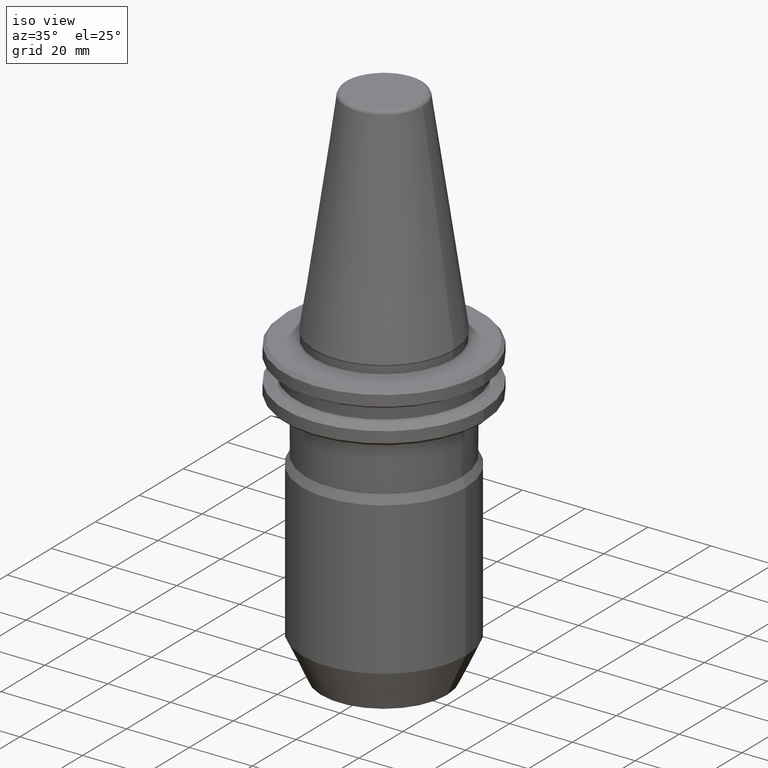
[diagram: clean part render]
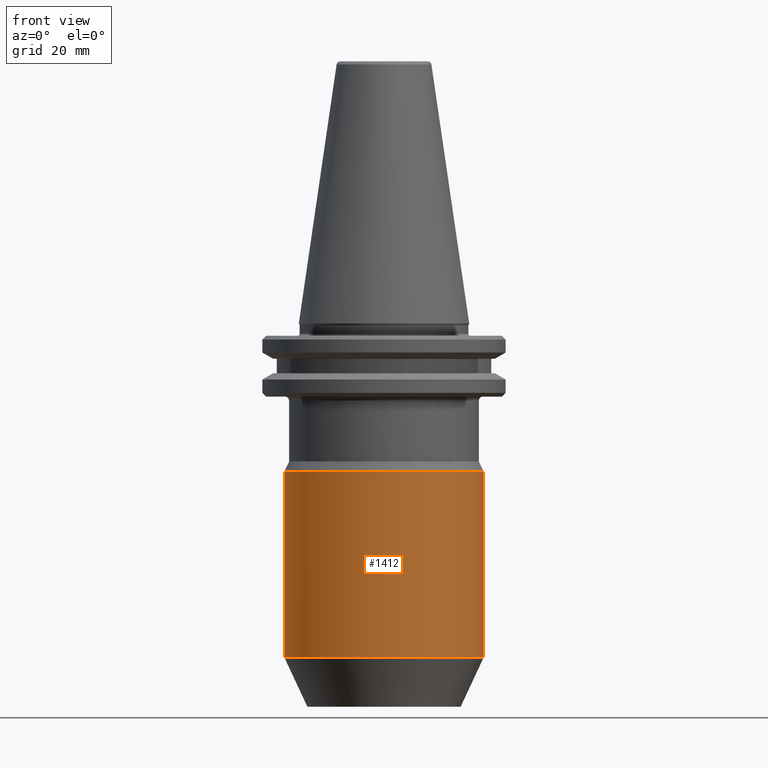
[diagram: tour spotlight — one face highlighted and labeled with its STEP entity id]
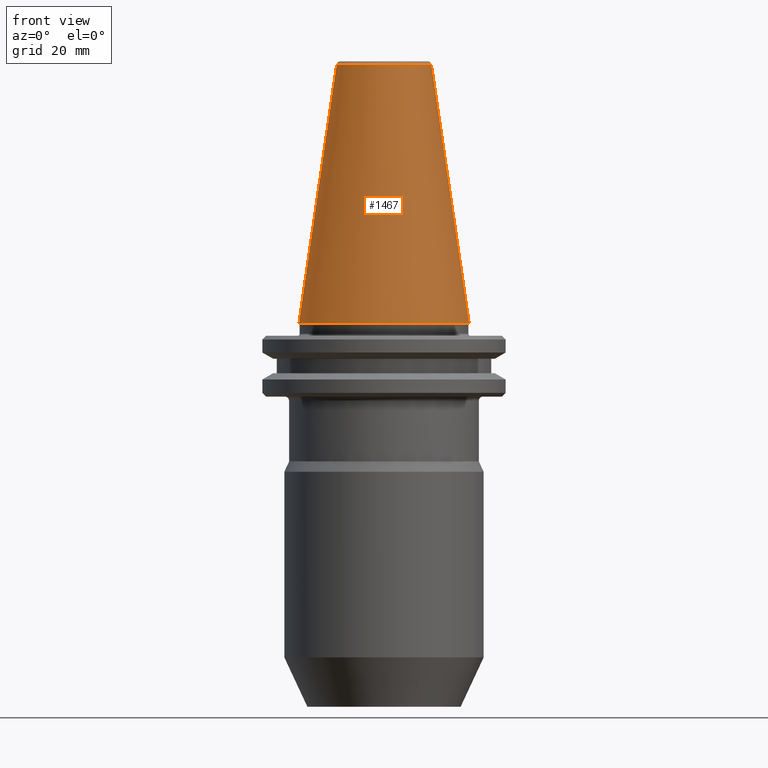
[diagram: tour spotlight — one face highlighted and labeled with its STEP entity id]
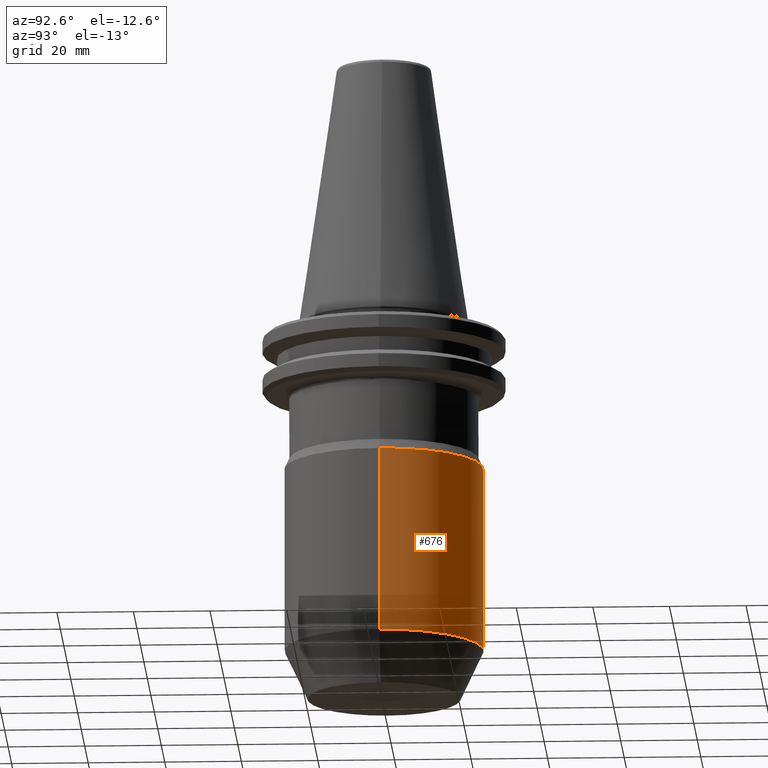
[diagram: tour spotlight — one face highlighted and labeled with its STEP entity id]
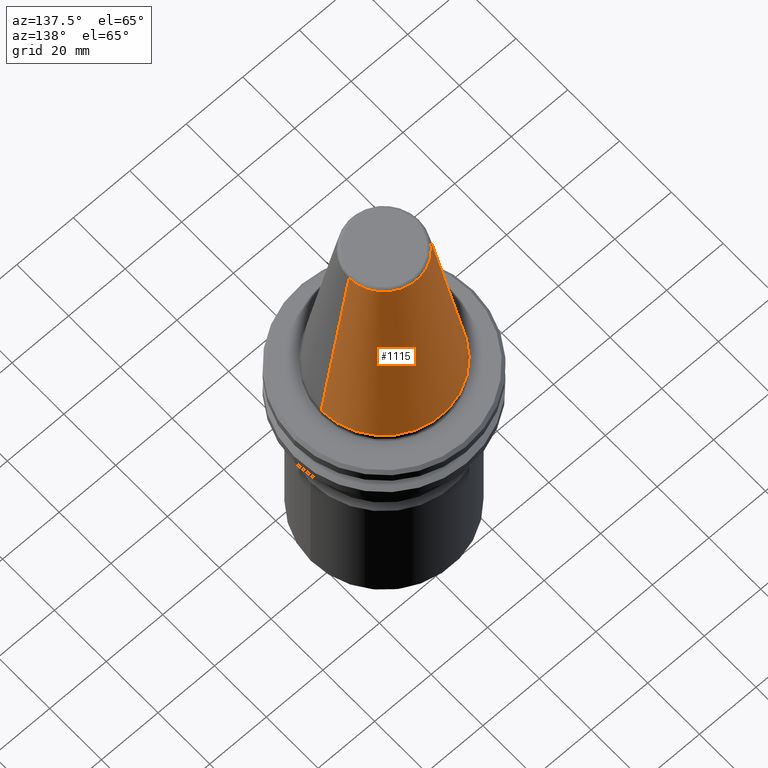
[diagram: tour spotlight — one face highlighted and labeled with its STEP entity id]
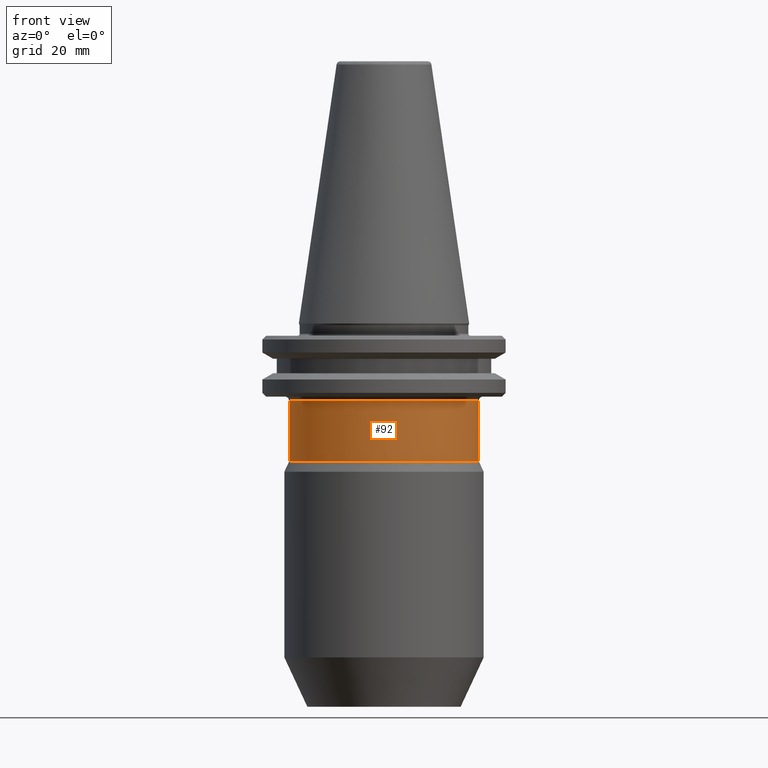
[diagram: tour spotlight — one face highlighted and labeled with its STEP entity id]
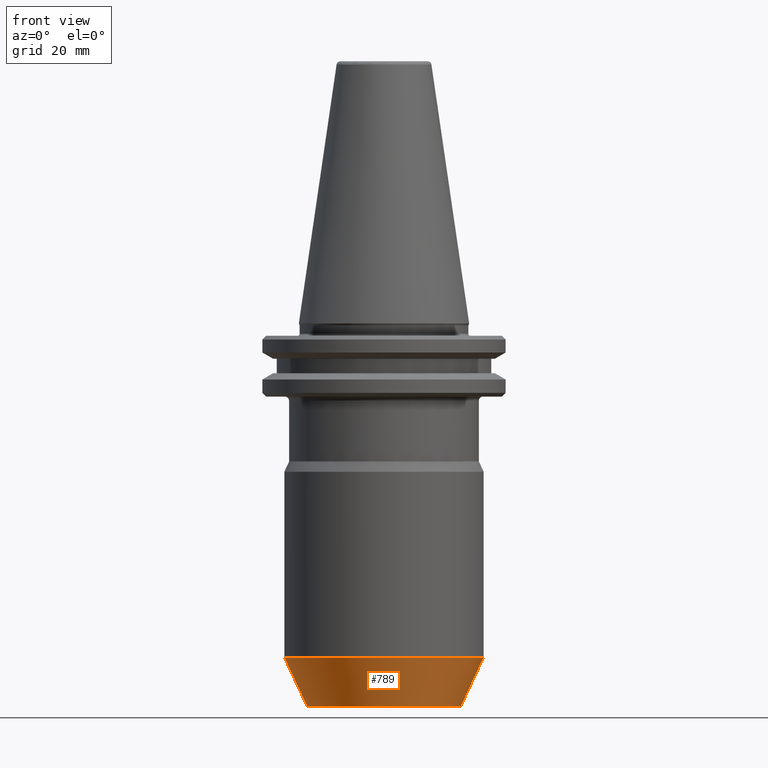
[diagram: tour spotlight — one face highlighted and labeled with its STEP entity id]
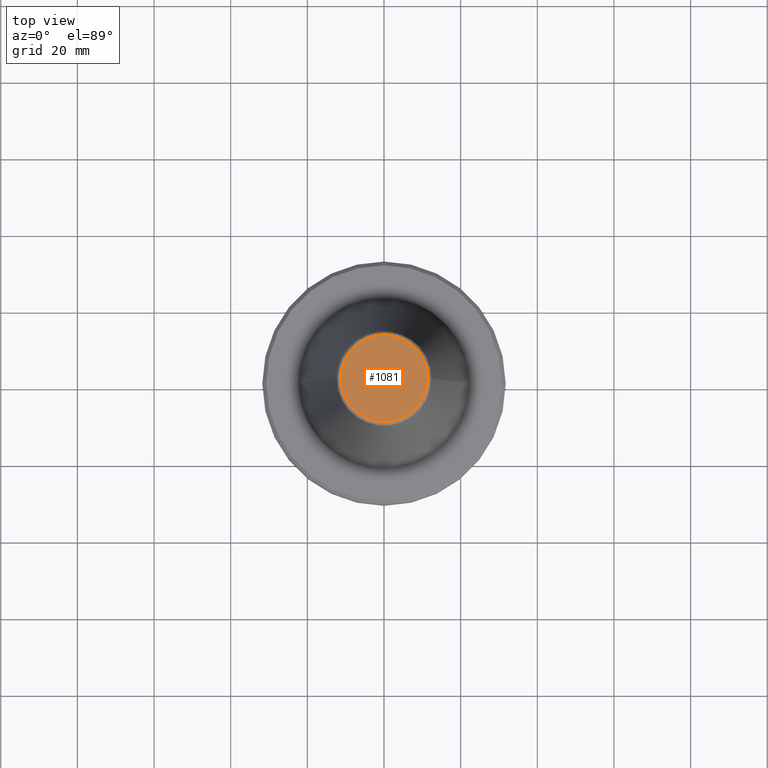
[diagram: tour spotlight — one face highlighted and labeled with its STEP entity id]
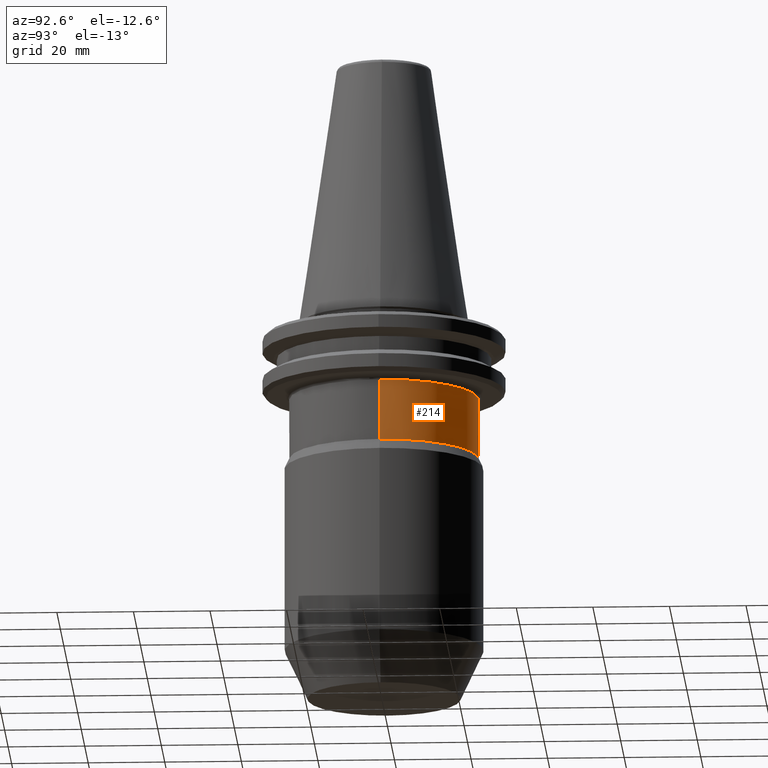
[diagram: tour spotlight — one face highlighted and labeled with its STEP entity id]
A machine part: a face-by-face anatomy tour. The part has 40 B-rep faces; the first image is the clean iso view, then the 8 largest visible faces are spotlighted one at a time (largest first), each with its STEP entity span.

Face 1 — front view, entity #1412. In plain terms, the highlighted cylindrical surface (partial cylindrical patch) has radius 26 mm, axis along (0, 0, 1).
Definition (entity closure, byte-faithful):
#10 = CYLINDRICAL_SURFACE ( 'NONE', #448, 26.00000000000000700 ) ;
#121 = VECTOR ( 'NONE', #576, 1000.000000000000000 ) ;
#134 = DIRECTION ( 'NONE',  ( 1.000000000000000000, 0.0000000000000000000, 0.0000000000000000000 ) ) ;
#135 = FACE_OUTER_BOUND ( 'NONE', #465, .T. ) ;
#157 = LINE ( 'NONE', #394, #121 ) ;
#173 = CARTESIAN_POINT ( 'NONE',  ( -26.00000000000000700, 3.184081677783119000E-015, -38.67999999999999300 ) ) ;
#183 = VERTEX_POINT ( 'NONE', #173 ) ;
#190 = ORIENTED_EDGE ( 'NONE', *, *, #1065, .F. ) ;
#265 = CARTESIAN_POINT ( 'NONE',  ( 0.0000000000000000000, 0.0000000000000000000, -87.13295847694240600 ) ) ;
#313 = CIRCLE ( 'NONE', #1620, 26.00000000000000700 ) ;
#354 = CARTESIAN_POINT ( 'NONE',  ( 26.00000000000000700, 0.0000000000000000000, -38.67999999999999300 ) ) ;
#394 = CARTESIAN_POINT ( 'NONE',  ( -26.00000000000000700, 3.184081677783119000E-015, 82.95681253582424100 ) ) ;
#427 = EDGE_CURVE ( 'NONE', #1399, #937, #313, .T. ) ;
#448 = AXIS2_PLACEMENT_3D ( 'NONE', #1138, #495, #1258 ) ;
#465 = EDGE_LOOP ( 'NONE', ( #190, #1082, #1165, #1482 ) ) ;
#489 = VECTOR ( 'NONE', #1542, 1000.000000000000000 ) ;
#495 = DIRECTION ( 'NONE',  ( 0.0000000000000000000, 0.0000000000000000000, 1.000000000000000000 ) ) ;
#562 = CARTESIAN_POINT ( 'NONE',  ( 0.0000000000000000000, 0.0000000000000000000, -38.67999999999999300 ) ) ;
#576 = DIRECTION ( 'NONE',  ( 0.0000000000000000000, 0.0000000000000000000, 1.000000000000000000 ) ) ;
#617 = CARTESIAN_POINT ( 'NONE',  ( 26.00000000000000700, 0.0000000000000000000, -87.13295847694240600 ) ) ;
#820 = DIRECTION ( 'NONE',  ( 1.000000000000000000, 0.0000000000000000000, 0.0000000000000000000 ) ) ;
#937 = VERTEX_POINT ( 'NONE', #617 ) ;
#941 = VERTEX_POINT ( 'NONE', #354 ) ;
#1042 = EDGE_CURVE ( 'NONE', #937, #941, #1512, .T. ) ;
#1044 = CARTESIAN_POINT ( 'NONE',  ( 26.00000000000000700, 0.0000000000000000000, 82.95681253582424100 ) ) ;
#1065 = EDGE_CURVE ( 'NONE', #1399, #183, #157, .T. ) ;
#1082 = ORIENTED_EDGE ( 'NONE', *, *, #427, .T. ) ;
#1095 = EDGE_CURVE ( 'NONE', #941, #183, #1427, .T. ) ;
#1138 = CARTESIAN_POINT ( 'NONE',  ( 0.0000000000000000000, 0.0000000000000000000, 82.95681253582424100 ) ) ;
#1152 = DIRECTION ( 'NONE',  ( 0.0000000000000000000, 0.0000000000000000000, 1.000000000000000000 ) ) ;
#1165 = ORIENTED_EDGE ( 'NONE', *, *, #1042, .T. ) ;
#1258 = DIRECTION ( 'NONE',  ( 1.000000000000000000, 0.0000000000000000000, 0.0000000000000000000 ) ) ;
#1303 = AXIS2_PLACEMENT_3D ( 'NONE', #562, #1447, #820 ) ;
#1383 = CARTESIAN_POINT ( 'NONE',  ( -26.00000000000000700, 3.184081677783119000E-015, -87.13295847694240600 ) ) ;
#1399 = VERTEX_POINT ( 'NONE', #1383 ) ;
#1412 = ADVANCED_FACE ( 'NONE', ( #135 ), #10, .T. ) ;
#1427 = CIRCLE ( 'NONE', #1303, 26.00000000000000700 ) ;
#1447 = DIRECTION ( 'NONE',  ( -0.0000000000000000000, -0.0000000000000000000, -1.000000000000000000 ) ) ;
#1482 = ORIENTED_EDGE ( 'NONE', *, *, #1095, .T. ) ;
#1512 = LINE ( 'NONE', #1044, #489 ) ;
#1542 = DIRECTION ( 'NONE',  ( 0.0000000000000000000, 0.0000000000000000000, 1.000000000000000000 ) ) ;
#1620 = AXIS2_PLACEMENT_3D ( 'NONE', #265, #1152, #134 ) ;

Face 2 — front view, entity #1467. In plain terms, the highlighted conical surface has half-angle 8.297 deg.
Definition (entity closure, byte-faithful):
#28 = VERTEX_POINT ( 'NONE', #245 ) ;
#94 = CARTESIAN_POINT ( 'NONE',  ( -22.22500000000000100, 0.0000000000000000000, 0.0000000000000000000 ) ) ;
#143 = DIRECTION ( 'NONE',  ( -0.0000000000000000000, -0.0000000000000000000, -1.000000000000000000 ) ) ;
#182 = EDGE_CURVE ( 'NONE', #608, #28, #1430, .T. ) ;
#188 = AXIS2_PLACEMENT_3D ( 'NONE', #1433, #1558, #543 ) ;
#245 = CARTESIAN_POINT ( 'NONE',  ( -12.37469537611110800, 0.0000000000000000000, 67.54430822726729400 ) ) ;
#276 = VECTOR ( 'NONE', #844, 1000.000000000000000 ) ;
#339 = CARTESIAN_POINT ( 'NONE',  ( -22.22500000000000100, 0.0000000000000000000, 0.0000000000000000000 ) ) ;
#480 = CARTESIAN_POINT ( 'NONE',  ( 22.22500000000000100, 2.721777511104992800E-015, 0.0000000000000000000 ) ) ;
#509 = DIRECTION ( 'NONE',  ( 0.0000000000000000000, 0.0000000000000000000, -1.000000000000000000 ) ) ;
#543 = DIRECTION ( 'NONE',  ( -1.000000000000000000, 0.0000000000000000000, 0.0000000000000000000 ) ) ;
#571 = CARTESIAN_POINT ( 'NONE',  ( 12.37469537611110800, 2.118620309691397300E-015, 67.54430822726729400 ) ) ;
#608 = VERTEX_POINT ( 'NONE', #571 ) ;
#612 = LINE ( 'NONE', #339, #276 ) ;
#625 = EDGE_LOOP ( 'NONE', ( #727, #1278, #779, #1624 ) ) ;
#642 = DIRECTION ( 'NONE',  ( -1.000000000000000000, 0.0000000000000000000, 0.0000000000000000000 ) ) ;
#658 = EDGE_CURVE ( 'NONE', #756, #862, #1070, .T. ) ;
#663 = DIRECTION ( 'NONE',  ( 0.1443082272673070500, 1.767266086135363700E-017, -0.9895327864921743500 ) ) ;
#687 = FACE_OUTER_BOUND ( 'NONE', #625, .T. ) ;
#727 = ORIENTED_EDGE ( 'NONE', *, *, #774, .F. ) ;
#733 = LINE ( 'NONE', #480, #1022 ) ;
#756 = VERTEX_POINT ( 'NONE', #863 ) ;
#774 = EDGE_CURVE ( 'NONE', #608, #756, #733, .T. ) ;
#779 = ORIENTED_EDGE ( 'NONE', *, *, #913, .T. ) ;
#844 = DIRECTION ( 'NONE',  ( -0.1443082272673070500, 0.0000000000000000000, -0.9895327864921743500 ) ) ;
#862 = VERTEX_POINT ( 'NONE', #94 ) ;
#863 = CARTESIAN_POINT ( 'NONE',  ( 22.22500000000000100, 2.721777511104992800E-015, 0.0000000000000000000 ) ) ;
#902 = CARTESIAN_POINT ( 'NONE',  ( 0.0000000000000000000, 0.0000000000000000000, 0.0000000000000000000 ) ) ;
#913 = EDGE_CURVE ( 'NONE', #28, #862, #612, .T. ) ;
#932 = CARTESIAN_POINT ( 'NONE',  ( 0.0000000000000000000, 0.0000000000000000000, 67.54430822726729400 ) ) ;
#1022 = VECTOR ( 'NONE', #663, 1000.000000000000000 ) ;
#1023 = AXIS2_PLACEMENT_3D ( 'NONE', #932, #509, #642 ) ;
#1029 = DIRECTION ( 'NONE',  ( 1.000000000000000000, 0.0000000000000000000, 9.822541477422708000E-017 ) ) ;
#1070 = CIRCLE ( 'NONE', #1271, 22.22500000000000500 ) ;
#1271 = AXIS2_PLACEMENT_3D ( 'NONE', #902, #143, #1029 ) ;
#1278 = ORIENTED_EDGE ( 'NONE', *, *, #182, .T. ) ;
#1283 = CONICAL_SURFACE ( 'NONE', #188, 22.22500000000000100, 0.1448138465474190500 ) ;
#1430 = CIRCLE ( 'NONE', #1023, 12.37469537611110800 ) ;
#1433 = CARTESIAN_POINT ( 'NONE',  ( 0.0000000000000000000, 0.0000000000000000000, 0.0000000000000000000 ) ) ;
#1467 = ADVANCED_FACE ( 'NONE', ( #687 ), #1283, .T. ) ;
#1558 = DIRECTION ( 'NONE',  ( 0.0000000000000000000, 0.0000000000000000000, -1.000000000000000000 ) ) ;
#1624 = ORIENTED_EDGE ( 'NONE', *, *, #658, .F. ) ;

Face 3 — auxiliary view, entity #676. In plain terms, the highlighted cylindrical surface (partial cylindrical patch) has radius 26 mm, axis along (0, 0, 1).
Definition (entity closure, byte-faithful):
#14 = DIRECTION ( 'NONE',  ( 1.000000000000000000, 0.0000000000000000000, 0.0000000000000000000 ) ) ;
#56 = CIRCLE ( 'NONE', #1112, 26.00000000000000700 ) ;
#67 = DIRECTION ( 'NONE',  ( 1.000000000000000000, 0.0000000000000000000, 0.0000000000000000000 ) ) ;
#68 = ORIENTED_EDGE ( 'NONE', *, *, #999, .T. ) ;
#121 = VECTOR ( 'NONE', #576, 1000.000000000000000 ) ;
#137 = FACE_OUTER_BOUND ( 'NONE', #1536, .T. ) ;
#157 = LINE ( 'NONE', #394, #121 ) ;
#173 = CARTESIAN_POINT ( 'NONE',  ( -26.00000000000000700, 3.184081677783119000E-015, -38.67999999999999300 ) ) ;
#183 = VERTEX_POINT ( 'NONE', #173 ) ;
#193 = DIRECTION ( 'NONE',  ( 0.0000000000000000000, 0.0000000000000000000, 1.000000000000000000 ) ) ;
#274 = DIRECTION ( 'NONE',  ( 0.0000000000000000000, 0.0000000000000000000, 1.000000000000000000 ) ) ;
#289 = ORIENTED_EDGE ( 'NONE', *, *, #1065, .T. ) ;
#354 = CARTESIAN_POINT ( 'NONE',  ( 26.00000000000000700, 0.0000000000000000000, -38.67999999999999300 ) ) ;
#394 = CARTESIAN_POINT ( 'NONE',  ( -26.00000000000000700, 3.184081677783119000E-015, 82.95681253582424100 ) ) ;
#437 = CARTESIAN_POINT ( 'NONE',  ( 0.0000000000000000000, 0.0000000000000000000, -87.13295847694240600 ) ) ;
#489 = VECTOR ( 'NONE', #1542, 1000.000000000000000 ) ;
#576 = DIRECTION ( 'NONE',  ( 0.0000000000000000000, 0.0000000000000000000, 1.000000000000000000 ) ) ;
#617 = CARTESIAN_POINT ( 'NONE',  ( 26.00000000000000700, 0.0000000000000000000, -87.13295847694240600 ) ) ;
#676 = ADVANCED_FACE ( 'NONE', ( #137 ), #1068, .T. ) ;
#770 = EDGE_CURVE ( 'NONE', #183, #941, #56, .T. ) ;
#795 = AXIS2_PLACEMENT_3D ( 'NONE', #1535, #274, #14 ) ;
#937 = VERTEX_POINT ( 'NONE', #617 ) ;
#941 = VERTEX_POINT ( 'NONE', #354 ) ;
#995 = AXIS2_PLACEMENT_3D ( 'NONE', #437, #193, #67 ) ;
#999 = EDGE_CURVE ( 'NONE', #937, #1399, #1210, .T. ) ;
#1039 = ORIENTED_EDGE ( 'NONE', *, *, #1042, .F. ) ;
#1042 = EDGE_CURVE ( 'NONE', #937, #941, #1512, .T. ) ;
#1044 = CARTESIAN_POINT ( 'NONE',  ( 26.00000000000000700, 0.0000000000000000000, 82.95681253582424100 ) ) ;
#1063 = ORIENTED_EDGE ( 'NONE', *, *, #770, .T. ) ;
#1065 = EDGE_CURVE ( 'NONE', #1399, #183, #157, .T. ) ;
#1068 = CYLINDRICAL_SURFACE ( 'NONE', #795, 26.00000000000000700 ) ;
#1112 = AXIS2_PLACEMENT_3D ( 'NONE', #1220, #1117, #1349 ) ;
#1117 = DIRECTION ( 'NONE',  ( -0.0000000000000000000, -0.0000000000000000000, -1.000000000000000000 ) ) ;
#1210 = CIRCLE ( 'NONE', #995, 26.00000000000000700 ) ;
#1220 = CARTESIAN_POINT ( 'NONE',  ( 0.0000000000000000000, 0.0000000000000000000, -38.67999999999999300 ) ) ;
#1349 = DIRECTION ( 'NONE',  ( 1.000000000000000000, 0.0000000000000000000, 0.0000000000000000000 ) ) ;
#1383 = CARTESIAN_POINT ( 'NONE',  ( -26.00000000000000700, 3.184081677783119000E-015, -87.13295847694240600 ) ) ;
#1399 = VERTEX_POINT ( 'NONE', #1383 ) ;
#1512 = LINE ( 'NONE', #1044, #489 ) ;
#1535 = CARTESIAN_POINT ( 'NONE',  ( 0.0000000000000000000, 0.0000000000000000000, 82.95681253582424100 ) ) ;
#1536 = EDGE_LOOP ( 'NONE', ( #68, #289, #1063, #1039 ) ) ;
#1542 = DIRECTION ( 'NONE',  ( 0.0000000000000000000, 0.0000000000000000000, 1.000000000000000000 ) ) ;

Face 4 — auxiliary view, entity #1115. In plain terms, the highlighted conical surface has half-angle 8.297 deg.
Definition (entity closure, byte-faithful):
#28 = VERTEX_POINT ( 'NONE', #245 ) ;
#94 = CARTESIAN_POINT ( 'NONE',  ( -22.22500000000000100, 0.0000000000000000000, 0.0000000000000000000 ) ) ;
#196 = ORIENTED_EDGE ( 'NONE', *, *, #774, .T. ) ;
#245 = CARTESIAN_POINT ( 'NONE',  ( -12.37469537611110800, 0.0000000000000000000, 67.54430822726729400 ) ) ;
#276 = VECTOR ( 'NONE', #844, 1000.000000000000000 ) ;
#280 = EDGE_CURVE ( 'NONE', #862, #756, #1513, .T. ) ;
#281 = DIRECTION ( 'NONE',  ( 0.0000000000000000000, 0.0000000000000000000, -1.000000000000000000 ) ) ;
#323 = ORIENTED_EDGE ( 'NONE', *, *, #913, .F. ) ;
#339 = CARTESIAN_POINT ( 'NONE',  ( -22.22500000000000100, 0.0000000000000000000, 0.0000000000000000000 ) ) ;
#352 = CARTESIAN_POINT ( 'NONE',  ( 0.0000000000000000000, 0.0000000000000000000, 0.0000000000000000000 ) ) ;
#422 = ORIENTED_EDGE ( 'NONE', *, *, #1027, .T. ) ;
#480 = CARTESIAN_POINT ( 'NONE',  ( 22.22500000000000100, 2.721777511104992800E-015, 0.0000000000000000000 ) ) ;
#500 = AXIS2_PLACEMENT_3D ( 'NONE', #1565, #281, #901 ) ;
#571 = CARTESIAN_POINT ( 'NONE',  ( 12.37469537611110800, 2.118620309691397300E-015, 67.54430822726729400 ) ) ;
#608 = VERTEX_POINT ( 'NONE', #571 ) ;
#612 = LINE ( 'NONE', #339, #276 ) ;
#660 = DIRECTION ( 'NONE',  ( -1.000000000000000000, 0.0000000000000000000, 0.0000000000000000000 ) ) ;
#663 = DIRECTION ( 'NONE',  ( 0.1443082272673070500, 1.767266086135363700E-017, -0.9895327864921743500 ) ) ;
#724 = ORIENTED_EDGE ( 'NONE', *, *, #280, .F. ) ;
#733 = LINE ( 'NONE', #480, #1022 ) ;
#751 = FACE_OUTER_BOUND ( 'NONE', #824, .T. ) ;
#756 = VERTEX_POINT ( 'NONE', #863 ) ;
#774 = EDGE_CURVE ( 'NONE', #608, #756, #733, .T. ) ;
#824 = EDGE_LOOP ( 'NONE', ( #422, #196, #724, #323 ) ) ;
#844 = DIRECTION ( 'NONE',  ( -0.1443082272673070500, 0.0000000000000000000, -0.9895327864921743500 ) ) ;
#854 = DIRECTION ( 'NONE',  ( 1.000000000000000000, 0.0000000000000000000, 9.822541477422708000E-017 ) ) ;
#862 = VERTEX_POINT ( 'NONE', #94 ) ;
#863 = CARTESIAN_POINT ( 'NONE',  ( 22.22500000000000100, 2.721777511104992800E-015, 0.0000000000000000000 ) ) ;
#901 = DIRECTION ( 'NONE',  ( -1.000000000000000000, 0.0000000000000000000, 0.0000000000000000000 ) ) ;
#913 = EDGE_CURVE ( 'NONE', #28, #862, #612, .T. ) ;
#920 = AXIS2_PLACEMENT_3D ( 'NONE', #352, #1113, #854 ) ;
#963 = CONICAL_SURFACE ( 'NONE', #500, 22.22500000000000100, 0.1448138465474190500 ) ;
#1022 = VECTOR ( 'NONE', #663, 1000.000000000000000 ) ;
#1027 = EDGE_CURVE ( 'NONE', #28, #608, #1543, .T. ) ;
#1083 = AXIS2_PLACEMENT_3D ( 'NONE', #1233, #1164, #660 ) ;
#1113 = DIRECTION ( 'NONE',  ( -0.0000000000000000000, -0.0000000000000000000, -1.000000000000000000 ) ) ;
#1115 = ADVANCED_FACE ( 'NONE', ( #751 ), #963, .T. ) ;
#1164 = DIRECTION ( 'NONE',  ( 0.0000000000000000000, 0.0000000000000000000, -1.000000000000000000 ) ) ;
#1233 = CARTESIAN_POINT ( 'NONE',  ( 0.0000000000000000000, 0.0000000000000000000, 67.54430822726729400 ) ) ;
#1513 = CIRCLE ( 'NONE', #920, 22.22500000000000500 ) ;
#1543 = CIRCLE ( 'NONE', #1083, 12.37469537611110800 ) ;
#1565 = CARTESIAN_POINT ( 'NONE',  ( 0.0000000000000000000, 0.0000000000000000000, 0.0000000000000000000 ) ) ;

Face 5 — front view, entity #92. In plain terms, the highlighted cylindrical surface (partial cylindrical patch) has radius 24.75 mm, axis along (0, 0, 1).
Definition (entity closure, byte-faithful):
#9 = VERTEX_POINT ( 'NONE', #713 ) ;
#92 = ADVANCED_FACE ( 'NONE', ( #365 ), #1389, .T. ) ;
#98 = CARTESIAN_POINT ( 'NONE',  ( -24.75000000000000000, 3.031000827889699300E-015, -20.10000000000000900 ) ) ;
#164 = CARTESIAN_POINT ( 'NONE',  ( 0.0000000000000000000, 0.0000000000000000000, 82.95681253582424100 ) ) ;
#171 = ORIENTED_EDGE ( 'NONE', *, *, #405, .T. ) ;
#250 = VERTEX_POINT ( 'NONE', #98 ) ;
#275 = CARTESIAN_POINT ( 'NONE',  ( 24.75000000000000000, 0.0000000000000000000, 82.95681253582424100 ) ) ;
#310 = DIRECTION ( 'NONE',  ( 0.0000000000000000000, 0.0000000000000000000, 1.000000000000000000 ) ) ;
#365 = FACE_OUTER_BOUND ( 'NONE', #1276, .T. ) ;
#405 = EDGE_CURVE ( 'NONE', #1195, #250, #1288, .T. ) ;
#421 = DIRECTION ( 'NONE',  ( 1.000000000000000000, 0.0000000000000000000, 0.0000000000000000000 ) ) ;
#467 = AXIS2_PLACEMENT_3D ( 'NONE', #164, #310, #421 ) ;
#478 = VERTEX_POINT ( 'NONE', #1131 ) ;
#526 = LINE ( 'NONE', #275, #1173 ) ;
#536 = EDGE_CURVE ( 'NONE', #478, #1195, #1370, .T. ) ;
#605 = ORIENTED_EDGE ( 'NONE', *, *, #1031, .T. ) ;
#631 = DIRECTION ( 'NONE',  ( 1.000000000000000000, 0.0000000000000000000, 0.0000000000000000000 ) ) ;
#668 = CIRCLE ( 'NONE', #1537, 24.75000000000000000 ) ;
#712 = DIRECTION ( 'NONE',  ( 0.0000000000000000000, 0.0000000000000000000, -1.000000000000000000 ) ) ;
#713 = CARTESIAN_POINT ( 'NONE',  ( 24.75000000000000000, 3.107541252836408700E-015, -35.99936634936307200 ) ) ;
#747 = CARTESIAN_POINT ( 'NONE',  ( 0.0000000000000000000, 0.0000000000000000000, -20.10000000000000900 ) ) ;
#782 = VERTEX_POINT ( 'NONE', #1257 ) ;
#790 = LINE ( 'NONE', #1305, #1471 ) ;
#864 = ORIENTED_EDGE ( 'NONE', *, *, #1101, .F. ) ;
#911 = DIRECTION ( 'NONE',  ( -1.000000000000000000, 0.0000000000000000000, 0.0000000000000000000 ) ) ;
#971 = AXIS2_PLACEMENT_3D ( 'NONE', #1518, #1265, #631 ) ;
#1031 = EDGE_CURVE ( 'NONE', #9, #478, #526, .T. ) ;
#1057 = EDGE_CURVE ( 'NONE', #782, #250, #790, .T. ) ;
#1092 = CARTESIAN_POINT ( 'NONE',  ( 23.42562699267621100, -7.987646712267634900, -20.10000000000000900 ) ) ;
#1101 = EDGE_CURVE ( 'NONE', #9, #782, #668, .T. ) ;
#1127 = ORIENTED_EDGE ( 'NONE', *, *, #536, .T. ) ;
#1129 = DIRECTION ( 'NONE',  ( -1.000000000000000000, 0.0000000000000000000, 0.0000000000000000000 ) ) ;
#1131 = CARTESIAN_POINT ( 'NONE',  ( 24.75000000000000000, 0.0000000000000000000, -20.10000000000000900 ) ) ;
#1173 = VECTOR ( 'NONE', #1352, 1000.000000000000000 ) ;
#1195 = VERTEX_POINT ( 'NONE', #1092 ) ;
#1257 = CARTESIAN_POINT ( 'NONE',  ( -24.75000000000000000, 0.0000000000000000000, -35.99936634936307200 ) ) ;
#1265 = DIRECTION ( 'NONE',  ( -0.0000000000000000000, -0.0000000000000000000, -1.000000000000000000 ) ) ;
#1276 = EDGE_LOOP ( 'NONE', ( #1555, #864, #605, #1127, #171 ) ) ;
#1288 = CIRCLE ( 'NONE', #971, 24.75000000000000000 ) ;
#1305 = CARTESIAN_POINT ( 'NONE',  ( -24.75000000000000000, 3.031000827889699300E-015, 82.95681253582424100 ) ) ;
#1311 = CARTESIAN_POINT ( 'NONE',  ( 0.0000000000000000000, 0.0000000000000000000, -35.99936634936307200 ) ) ;
#1352 = DIRECTION ( 'NONE',  ( 0.0000000000000000000, 0.0000000000000000000, 1.000000000000000000 ) ) ;
#1367 = DIRECTION ( 'NONE',  ( 0.0000000000000000000, 0.0000000000000000000, 1.000000000000000000 ) ) ;
#1370 = CIRCLE ( 'NONE', #1372, 24.75000000000000000 ) ;
#1372 = AXIS2_PLACEMENT_3D ( 'NONE', #747, #1429, #1129 ) ;
#1389 = CYLINDRICAL_SURFACE ( 'NONE', #467, 24.75000000000000000 ) ;
#1429 = DIRECTION ( 'NONE',  ( 0.0000000000000000000, 0.0000000000000000000, -1.000000000000000000 ) ) ;
#1471 = VECTOR ( 'NONE', #1367, 1000.000000000000000 ) ;
#1518 = CARTESIAN_POINT ( 'NONE',  ( 0.0000000000000000000, 0.0000000000000000000, -20.10000000000000900 ) ) ;
#1537 = AXIS2_PLACEMENT_3D ( 'NONE', #1311, #712, #911 ) ;
#1555 = ORIENTED_EDGE ( 'NONE', *, *, #1057, .F. ) ;

Face 6 — front view, entity #789. In plain terms, the highlighted conical surface has half-angle 25 deg.
Definition (entity closure, byte-faithful):
#48 = EDGE_LOOP ( 'NONE', ( #823, #341, #132, #704 ) ) ;
#107 = DIRECTION ( 'NONE',  ( 1.000000000000000000, 0.0000000000000000000, 0.0000000000000000000 ) ) ;
#132 = ORIENTED_EDGE ( 'NONE', *, *, #201, .T. ) ;
#134 = DIRECTION ( 'NONE',  ( 1.000000000000000000, 0.0000000000000000000, 0.0000000000000000000 ) ) ;
#160 = VECTOR ( 'NONE', #1109, 1000.000000000000000 ) ;
#201 = EDGE_CURVE ( 'NONE', #763, #937, #791, .T. ) ;
#210 = CARTESIAN_POINT ( 'NONE',  ( 26.00000000000000700, 0.0000000000000000000, -87.13295847694240600 ) ) ;
#220 = CARTESIAN_POINT ( 'NONE',  ( 0.0000000000000000000, 0.0000000000000000000, -87.13295847694240600 ) ) ;
#233 = DIRECTION ( 'NONE',  ( 0.0000000000000000000, 0.0000000000000000000, 1.000000000000000000 ) ) ;
#235 = CARTESIAN_POINT ( 'NONE',  ( 0.0000000000000000000, 0.0000000000000000000, -100.0000000000000000 ) ) ;
#265 = CARTESIAN_POINT ( 'NONE',  ( 0.0000000000000000000, 0.0000000000000000000, -87.13295847694240600 ) ) ;
#301 = EDGE_CURVE ( 'NONE', #827, #1399, #491, .T. ) ;
#313 = CIRCLE ( 'NONE', #1620, 26.00000000000000700 ) ;
#341 = ORIENTED_EDGE ( 'NONE', *, *, #928, .T. ) ;
#427 = EDGE_CURVE ( 'NONE', #1399, #937, #313, .T. ) ;
#485 = DIRECTION ( 'NONE',  ( -0.4226182617406926100, 5.175581015019575600E-017, 0.9063077870366531600 ) ) ;
#491 = LINE ( 'NONE', #1616, #909 ) ;
#601 = CARTESIAN_POINT ( 'NONE',  ( -20.00000000000001100, 2.816687638038913500E-015, -100.0000000000000000 ) ) ;
#617 = CARTESIAN_POINT ( 'NONE',  ( 26.00000000000000700, 0.0000000000000000000, -87.13295847694240600 ) ) ;
#648 = CONICAL_SURFACE ( 'NONE', #1630, 26.00000000000000700, 0.4363323129985748300 ) ;
#704 = ORIENTED_EDGE ( 'NONE', *, *, #427, .F. ) ;
#728 = CARTESIAN_POINT ( 'NONE',  ( 20.00000000000001100, 0.0000000000000000000, -100.0000000000000000 ) ) ;
#763 = VERTEX_POINT ( 'NONE', #728 ) ;
#789 = ADVANCED_FACE ( 'NONE', ( #1369 ), #648, .T. ) ;
#791 = LINE ( 'NONE', #210, #160 ) ;
#823 = ORIENTED_EDGE ( 'NONE', *, *, #301, .F. ) ;
#827 = VERTEX_POINT ( 'NONE', #601 ) ;
#907 = CIRCLE ( 'NONE', #1332, 20.00000000000001100 ) ;
#909 = VECTOR ( 'NONE', #485, 1000.000000000000000 ) ;
#928 = EDGE_CURVE ( 'NONE', #827, #763, #907, .T. ) ;
#937 = VERTEX_POINT ( 'NONE', #617 ) ;
#994 = DIRECTION ( 'NONE',  ( 0.0000000000000000000, 0.0000000000000000000, 1.000000000000000000 ) ) ;
#1109 = DIRECTION ( 'NONE',  ( 0.4226182617406926100, 0.0000000000000000000, 0.9063077870366531600 ) ) ;
#1152 = DIRECTION ( 'NONE',  ( 0.0000000000000000000, 0.0000000000000000000, 1.000000000000000000 ) ) ;
#1253 = DIRECTION ( 'NONE',  ( 1.000000000000000000, 0.0000000000000000000, 0.0000000000000000000 ) ) ;
#1332 = AXIS2_PLACEMENT_3D ( 'NONE', #235, #994, #107 ) ;
#1369 = FACE_OUTER_BOUND ( 'NONE', #48, .T. ) ;
#1383 = CARTESIAN_POINT ( 'NONE',  ( -26.00000000000000700, 3.184081677783119000E-015, -87.13295847694240600 ) ) ;
#1399 = VERTEX_POINT ( 'NONE', #1383 ) ;
#1616 = CARTESIAN_POINT ( 'NONE',  ( -26.00000000000000700, 3.184081677783119000E-015, -87.13295847694240600 ) ) ;
#1620 = AXIS2_PLACEMENT_3D ( 'NONE', #265, #1152, #134 ) ;
#1630 = AXIS2_PLACEMENT_3D ( 'NONE', #220, #233, #1253 ) ;

Face 7 — top view, entity #1081. In plain terms, the highlighted planar face has unit normal (0, 0, 1).
Definition (entity closure, byte-faithful):
#62 = DIRECTION ( 'NONE',  ( 1.000000000000000000, 0.0000000000000000000, -0.0000000000000000000 ) ) ;
#150 = ORIENTED_EDGE ( 'NONE', *, *, #1319, .F. ) ;
#285 = AXIS2_PLACEMENT_3D ( 'NONE', #944, #1015, #62 ) ;
#334 = CARTESIAN_POINT ( 'NONE',  ( 11.38516258961893100, -22.77032517923785800, 68.39999999999999100 ) ) ;
#335 = PLANE ( 'NONE',  #285 ) ;
#342 = CARTESIAN_POINT ( 'NONE',  ( -11.38516258961893100, 1.418516855507481500E-015, 68.39999999999999100 ) ) ;
#363 = CARTESIAN_POINT ( 'NONE',  ( -11.38516258961893100, 1.418516855507481500E-015, 68.39999999999999100 ) ) ;
#412 = VERTEX_POINT ( 'NONE', #363 ) ;
#734 = CARTESIAN_POINT ( 'NONE',  ( 11.38516258961893100, 22.77032517923785800, 68.39999999999999100 ) ) ;
#740 = CARTESIAN_POINT ( 'NONE',  ( -11.38516258961893400, -22.77032517923785800, 68.39999999999999100 ) ) ;
#757 = EDGE_LOOP ( 'NONE', ( #1603, #150 ) ) ;
#914 = CARTESIAN_POINT ( 'NONE',  ( 11.38516258961893100, 0.0000000000000000000, 68.39999999999999100 ) ) ;
#944 = CARTESIAN_POINT ( 'NONE',  ( 0.0000000000000000000, -8.337524199435086500E-014, 68.39999999999999100 ) ) ;
#1015 = DIRECTION ( 'NONE',  ( 0.0000000000000000000, 0.0000000000000000000, 1.000000000000000000 ) ) ;
#1019 =( BOUNDED_CURVE ( )  B_SPLINE_CURVE ( 3, ( #1241, #334, #740, #1613 ),
 .UNSPECIFIED., .F., .F. ) 
 B_SPLINE_CURVE_WITH_KNOTS ( ( 4, 4 ),
 ( 0.0000000000000000000, 1.000000000000000000 ),
 .UNSPECIFIED. ) 
 CURVE ( )  GEOMETRIC_REPRESENTATION_ITEM ( )  RATIONAL_B_SPLINE_CURVE ( ( 1.000000000000000000, 0.3333333333333333700, 0.3333333333333333700, 1.000000000000000000 ) ) 
 REPRESENTATION_ITEM ( '' )  );
#1081 = ADVANCED_FACE ( 'NONE', ( #1388 ), #335, .T. ) ;
#1086 = VERTEX_POINT ( 'NONE', #914 ) ;
#1236 = CARTESIAN_POINT ( 'NONE',  ( -11.38516258961892700, 22.77032517923785800, 68.39999999999999100 ) ) ;
#1241 = CARTESIAN_POINT ( 'NONE',  ( 11.38516258961893100, 0.0000000000000000000, 68.39999999999999100 ) ) ;
#1309 = EDGE_CURVE ( 'NONE', #412, #1086, #1469, .T. ) ;
#1319 = EDGE_CURVE ( 'NONE', #1086, #412, #1019, .T. ) ;
#1388 = FACE_OUTER_BOUND ( 'NONE', #757, .T. ) ;
#1469 =( BOUNDED_CURVE ( )  B_SPLINE_CURVE ( 3, ( #342, #1236, #734, #1607 ),
 .UNSPECIFIED., .F., .T. ) 
 B_SPLINE_CURVE_WITH_KNOTS ( ( 4, 4 ),
 ( 0.0000000000000000000, 1.000000000000000000 ),
 .UNSPECIFIED. ) 
 CURVE ( )  GEOMETRIC_REPRESENTATION_ITEM ( )  RATIONAL_B_SPLINE_CURVE ( ( 1.000000000000000000, 0.3333333333333333700, 0.3333333333333333700, 1.000000000000000000 ) ) 
 REPRESENTATION_ITEM ( '' )  );
#1603 = ORIENTED_EDGE ( 'NONE', *, *, #1309, .F. ) ;
#1607 = CARTESIAN_POINT ( 'NONE',  ( 11.38516258961893100, 0.0000000000000000000, 68.39999999999999100 ) ) ;
#1613 = CARTESIAN_POINT ( 'NONE',  ( -11.38516258961893100, 1.418516855507481500E-015, 68.39999999999999100 ) ) ;

Face 8 — auxiliary view, entity #214. In plain terms, the highlighted cylindrical surface (partial cylindrical patch) has radius 24.75 mm, axis along (0, 0, 1).
Definition (entity closure, byte-faithful):
#9 = VERTEX_POINT ( 'NONE', #713 ) ;
#26 = ORIENTED_EDGE ( 'NONE', *, *, #1031, .F. ) ;
#61 = DIRECTION ( 'NONE',  ( -1.000000000000000000, 0.0000000000000000000, 0.0000000000000000000 ) ) ;
#98 = CARTESIAN_POINT ( 'NONE',  ( -24.75000000000000000, 3.031000827889699300E-015, -20.10000000000000900 ) ) ;
#105 = CARTESIAN_POINT ( 'NONE',  ( 0.0000000000000000000, 0.0000000000000000000, -20.10000000000000900 ) ) ;
#123 = FACE_OUTER_BOUND ( 'NONE', #1584, .T. ) ;
#187 = VERTEX_POINT ( 'NONE', #1394 ) ;
#214 = ADVANCED_FACE ( 'NONE', ( #123 ), #529, .T. ) ;
#250 = VERTEX_POINT ( 'NONE', #98 ) ;
#262 = EDGE_CURVE ( 'NONE', #250, #187, #1473, .T. ) ;
#275 = CARTESIAN_POINT ( 'NONE',  ( 24.75000000000000000, 0.0000000000000000000, 82.95681253582424100 ) ) ;
#386 = AXIS2_PLACEMENT_3D ( 'NONE', #443, #1338, #579 ) ;
#443 = CARTESIAN_POINT ( 'NONE',  ( 0.0000000000000000000, 0.0000000000000000000, -35.99936634936307200 ) ) ;
#478 = VERTEX_POINT ( 'NONE', #1131 ) ;
#504 = EDGE_CURVE ( 'NONE', #187, #478, #736, .T. ) ;
#526 = LINE ( 'NONE', #275, #1173 ) ;
#529 = CYLINDRICAL_SURFACE ( 'NONE', #852, 24.75000000000000000 ) ;
#579 = DIRECTION ( 'NONE',  ( -1.000000000000000000, 0.0000000000000000000, 0.0000000000000000000 ) ) ;
#582 = ORIENTED_EDGE ( 'NONE', *, *, #1057, .T. ) ;
#597 = CARTESIAN_POINT ( 'NONE',  ( 0.0000000000000000000, 0.0000000000000000000, 82.95681253582424100 ) ) ;
#713 = CARTESIAN_POINT ( 'NONE',  ( 24.75000000000000000, 3.107541252836408700E-015, -35.99936634936307200 ) ) ;
#736 = CIRCLE ( 'NONE', #1454, 24.75000000000000000 ) ;
#782 = VERTEX_POINT ( 'NONE', #1257 ) ;
#790 = LINE ( 'NONE', #1305, #1471 ) ;
#852 = AXIS2_PLACEMENT_3D ( 'NONE', #597, #1487, #1489 ) ;
#878 = ORIENTED_EDGE ( 'NONE', *, *, #504, .T. ) ;
#960 = DIRECTION ( 'NONE',  ( 0.0000000000000000000, 0.0000000000000000000, -1.000000000000000000 ) ) ;
#990 = DIRECTION ( 'NONE',  ( -0.0000000000000000000, -0.0000000000000000000, -1.000000000000000000 ) ) ;
#1031 = EDGE_CURVE ( 'NONE', #9, #478, #526, .T. ) ;
#1057 = EDGE_CURVE ( 'NONE', #782, #250, #790, .T. ) ;
#1124 = DIRECTION ( 'NONE',  ( 1.000000000000000000, 0.0000000000000000000, 0.0000000000000000000 ) ) ;
#1131 = CARTESIAN_POINT ( 'NONE',  ( 24.75000000000000000, 0.0000000000000000000, -20.10000000000000900 ) ) ;
#1151 = EDGE_CURVE ( 'NONE', #782, #9, #1594, .T. ) ;
#1173 = VECTOR ( 'NONE', #1352, 1000.000000000000000 ) ;
#1193 = AXIS2_PLACEMENT_3D ( 'NONE', #105, #990, #1124 ) ;
#1257 = CARTESIAN_POINT ( 'NONE',  ( -24.75000000000000000, 0.0000000000000000000, -35.99936634936307200 ) ) ;
#1297 = ORIENTED_EDGE ( 'NONE', *, *, #1151, .F. ) ;
#1305 = CARTESIAN_POINT ( 'NONE',  ( -24.75000000000000000, 3.031000827889699300E-015, 82.95681253582424100 ) ) ;
#1338 = DIRECTION ( 'NONE',  ( 0.0000000000000000000, 0.0000000000000000000, -1.000000000000000000 ) ) ;
#1352 = DIRECTION ( 'NONE',  ( 0.0000000000000000000, 0.0000000000000000000, 1.000000000000000000 ) ) ;
#1367 = DIRECTION ( 'NONE',  ( 0.0000000000000000000, 0.0000000000000000000, 1.000000000000000000 ) ) ;
#1394 = CARTESIAN_POINT ( 'NONE',  ( 23.42562699267621100, 7.987646712267638400, -20.10000000000000900 ) ) ;
#1453 = CARTESIAN_POINT ( 'NONE',  ( 0.0000000000000000000, 0.0000000000000000000, -20.10000000000000900 ) ) ;
#1454 = AXIS2_PLACEMENT_3D ( 'NONE', #1453, #960, #61 ) ;
#1471 = VECTOR ( 'NONE', #1367, 1000.000000000000000 ) ;
#1473 = CIRCLE ( 'NONE', #1193, 24.75000000000000000 ) ;
#1487 = DIRECTION ( 'NONE',  ( 0.0000000000000000000, 0.0000000000000000000, 1.000000000000000000 ) ) ;
#1489 = DIRECTION ( 'NONE',  ( 1.000000000000000000, 0.0000000000000000000, 0.0000000000000000000 ) ) ;
#1522 = ORIENTED_EDGE ( 'NONE', *, *, #262, .T. ) ;
#1584 = EDGE_LOOP ( 'NONE', ( #1297, #582, #1522, #878, #26 ) ) ;
#1594 = CIRCLE ( 'NONE', #386, 24.75000000000000000 ) ;